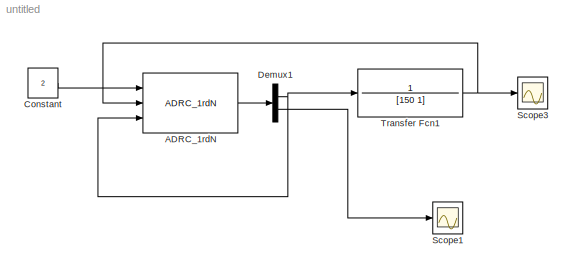
MODEL untitled
KIND model
BLOCK [Reference] ADRC_1rdN  REF=ADRC/ADRC/ADRC_1rd/ADRC_1rdN
  B01 = 20
  B02 = 500
  FunctionWithSeparateData = off
  GeneratePreprocessorConditionals = off
  Ports = [3, 1]
  RT = 50
  RTWMemSecDataConstants = Inherit from model
  RTWMemSecDataInternal = Inherit from model
  RTWMemSecDataParameters = Inherit from model
  RTWMemSecFuncExecute = Inherit from model
  RTWMemSecFuncInitTerm = Inherit from model
  SID = 2
  ShowPortLabels = FromPortIcon
  SourceBlock = ADRC/ADRC/ADRC_1rd/ADRC_1rdN
  SystemSampleTime = -1
  h = 0.05
  r = 1
BLOCK [Constant] Constant
  SID = 3
  Value = 2
BLOCK [Demux] Demux1
  DisplayOption = bar
  Outputs = 2
  Ports = [1, 2]
  SID = 5
BLOCK [Scope] Scope1
  DataFormat = Array
  Floating = off
  LimitDataPoints = off
  NumInputPorts = 1
  Ports = [1]
  SID = 6
  SampleTime = 0
  SaveName = ScopeData1
  TimeRange = 1000
  YMax = 1.4e+236
  YMin = -2e+235
BLOCK [Scope] Scope3
  DataFormat = Array
  Floating = off
  LimitDataPoints = off
  NumInputPorts = 1
  Ports = [1]
  SID = 4
  SampleTime = 0
  TimeRange = 1000
  YMax = 1.4e+236
  YMin = -2e+235
BLOCK [TransferFcn] Transfer Fcn1
  Denominator = [150 1]
  Numerator = 1
  SID = 1
LINE ADRC_1rdN:1 -> Demux1:1
LINE Constant:1 -> ADRC_1rdN:1
NET Demux1:1 -> ADRC_1rdN:3, Transfer Fcn1:1
LINE Demux1:2 -> Scope1:1
NET Transfer Fcn1:1 -> ADRC_1rdN:2, Scope3:1
note: NET lines group one-source signal fan-out (src -> all destinations, sorted); 1:1 wires keep LINE
